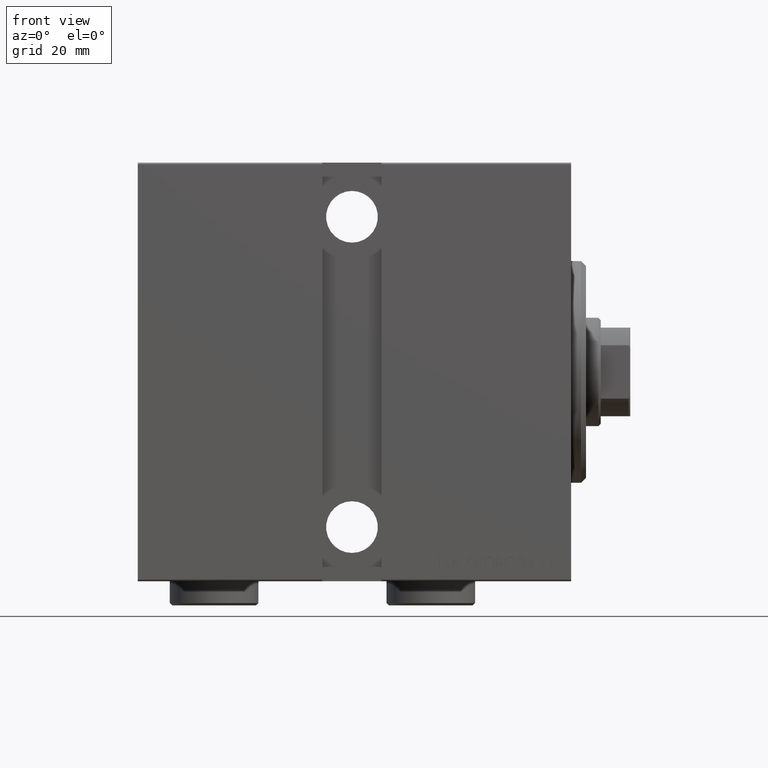
[diagram: clean part render]
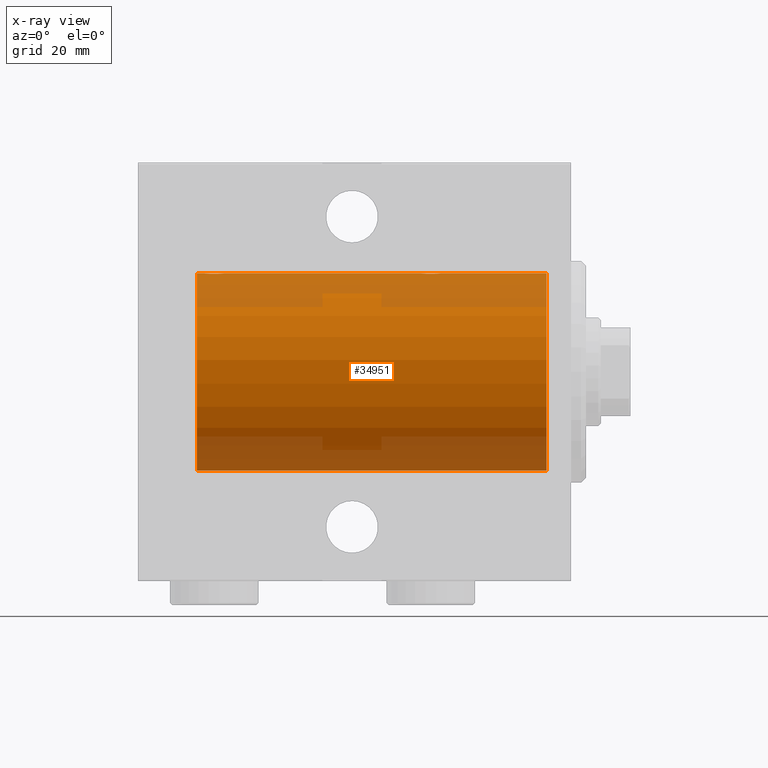
[diagram: x-ray — body ghosted, one internal face saturated and labeled with its STEP entity id]
A machine part, front view, then the same camera in x-ray: the body is ghosted and one INTERNAL B-rep face — a face not visible from any outside direction — is saturated and labeled: STEP entity #34951.
In plain terms, the highlighted cylindrical surface (partial cylindrical patch) has radius 20 mm, axis along (1, 0, -0).
Its self-contained STEP definition (entity closure, byte-faithful):
#378 = DIRECTION ( 'NONE',  ( -1.000000000000000000, -0.000000000000000000, -0.000000000000000000 ) ) ;
#546 = CARTESIAN_POINT ( 'NONE',  ( 30.00615770380712632, 1.322305185229308844, 19.95645382900617193 ) ) ;
#777 = CARTESIAN_POINT ( 'NONE',  ( 71.85628869360149906, 1.898109641280497639, 19.90978941500366872 ) ) ;
#1210 = CARTESIAN_POINT ( 'NONE',  ( 74.48701494615326624, 0.2622407139811093191, 19.99868965376115426 ) ) ;
#1415 = CARTESIAN_POINT ( 'NONE',  ( 27.61403810544162951, 1.797847595792755770, 19.91909332229799290 ) ) ;
#1422 = DIRECTION ( 'NONE',  ( -1.000000000000000000, 0.000000000000000000, 0.000000000000000000 ) ) ;
#1654 = CARTESIAN_POINT ( 'NONE',  ( 71.61403810544166504, 1.797847595792759323, 19.91909332229798935 ) ) ;
#2547 = CARTESIAN_POINT ( 'NONE',  ( 71.49702773215048524, 1.735228749583821672, 19.92471474456648650 ) ) ;
#2846 = DIRECTION ( 'NONE',  ( 0.000000000000000000, 0.000000000000000000, 1.000000000000000000 ) ) ;
#3216 = DIRECTION ( 'NONE',  ( -1.000000000000000000, 0.000000000000000000, 0.000000000000000000 ) ) ;
#3282 = EDGE_CURVE ( 'NONE', #22943, #5739, #6416, .T. ) ;
#3906 = CARTESIAN_POINT ( 'NONE',  ( 30.09059733457551289, 1.219458756546269784, 19.96308513509966431 ) ) ;
#4085 = DIRECTION ( 'NONE',  ( 0.000000000000000000, 0.000000000000000000, 1.000000000000000000 ) ) ;
#4563 = CARTESIAN_POINT ( 'NONE',  ( 76.00000000000000000, 0.000000000000000000, 0.000000000000000000 ) ) ;
#5005 = CARTESIAN_POINT ( 'NONE',  ( 73.72950112230634545, 1.598854313793176773, 19.93684595445884256 ) ) ;
#5563 = ORIENTED_EDGE ( 'NONE', *, *, #22216, .T. ) ;
#5585 = CARTESIAN_POINT ( 'NONE',  ( 76.00000000000000000, 0.000000000000000000, 20.00000000000000000 ) ) ;
#5739 = VERTEX_POINT ( 'NONE', #35422 ) ;
#6416 = LINE ( 'NONE', #36701, #40585 ) ;
#7456 = EDGE_CURVE ( 'NONE', #5739, #24642, #22100, .T. ) ;
#7478 = CARTESIAN_POINT ( 'NONE',  ( 72.76180153897439595, 1.999905101582713396, 19.89975827978156531 ) ) ;
#7578 = VERTEX_POINT ( 'NONE', #26139 ) ;
#8330 = CARTESIAN_POINT ( 'NONE',  ( 26.50000000000000000, 0.1305706983324424475, 20.00000000000000355 ) ) ;
#8365 = ORIENTED_EDGE ( 'NONE', *, *, #29020, .T. ) ;
#8560 = CARTESIAN_POINT ( 'NONE',  ( 29.02513908454998059, 1.947330458682949850, 19.90522393307484705 ) ) ;
#8791 = CARTESIAN_POINT ( 'NONE',  ( 26.90992932310325969, 1.220099331833889966, 19.96304379627741099 ) ) ;
#9239 = CARTESIAN_POINT ( 'NONE',  ( 70.51308707988555113, 0.2631998640366408626, 19.99867931558986456 ) ) ;
#10310 = CARTESIAN_POINT ( 'NONE',  ( 74.50000000000001421, 1.179655747245154047E-15, 20.00000000000000000 ) ) ;
#10397 = LINE ( 'NONE', #27544, #26405 ) ;
#10594 = CARTESIAN_POINT ( 'NONE',  ( 30.50000000000000000, -3.987914257189907626E-15, 20.00000000000000000 ) ) ;
#11223 = ORIENTED_EDGE ( 'NONE', *, *, #26367, .T. ) ;
#11486 = VERTEX_POINT ( 'NONE', #40595 ) ;
#11700 = CARTESIAN_POINT ( 'NONE',  ( 74.09059733457554842, 1.219458756546261791, 19.96308513509966787 ) ) ;
#13737 = CARTESIAN_POINT ( 'NONE',  ( 30.29721343056696270, 0.8872481584516771491, 19.98067755938510004 ) ) ;
#14730 = CARTESIAN_POINT ( 'NONE',  ( 26.50000000000000355, -1.552596590610734385E-23, 20.00000000000000000 ) ) ;
#14814 = CARTESIAN_POINT ( 'NONE',  ( 27.85628869360148840, 1.898109641280496085, 19.90978941500366872 ) ) ;
#14824 = CARTESIAN_POINT ( 'NONE',  ( 74.29721343056698402, 0.8872481584516744846, 19.98067755938509649 ) ) ;
#15487 = CARTESIAN_POINT ( 'NONE',  ( 70.50000000000004263, 0.1305706983324428083, 20.00000000000000355 ) ) ;
#16833 = B_SPLINE_CURVE_WITH_KNOTS ( 'NONE', 3,
 ( #31740, #28399, #1210, #37979, #42184, #14824, #27755, #11700, #35497, #5005, #41317, #18607, #7478, #21071, #34626, #17727, #777, #1654, #2547, #26175, #22827, #23047, #19487, #33063, #39730, #39523, #36168, #9239, #15487, #22394 ),
 .UNSPECIFIED., .F., .F.,
 ( 4, 2, 2, 2, 2, 2, 2, 2, 2, 2, 2, 2, 2, 2, 4 ),
 ( 1.146295712831832348E-18, 0.0003910512220831368810, 0.0007821024441662726779, 0.001173153666249408420, 0.001564204888332544055, 0.002346307332498786917, 0.003128409776665029562, 0.003519460998748130502, 0.003910512220831229707, 0.004301563442914330647, 0.004692614664997430719, 0.005083665887080530792, 0.005474717109163631731, 0.005865768331246731804, 0.006256819553329832743 ),
 .UNSPECIFIED. ) ;
#17009 = DIRECTION ( 'NONE',  ( -1.000000000000000000, -0.000000000000000000, -0.000000000000000000 ) ) ;
#17070 = CARTESIAN_POINT ( 'NONE',  ( 30.43615228383327320, 0.5179893069484664547, 19.99370013622814568 ) ) ;
#17155 = AXIS2_PLACEMENT_3D ( 'NONE', #17258, #3216, #4085 ) ;
#17258 = CARTESIAN_POINT ( 'NONE',  ( 5.000000000000004441, 0.000000000000000000, 0.000000000000000000 ) ) ;
#17727 = CARTESIAN_POINT ( 'NONE',  ( 71.98100525813890727, 1.935912154109689531, 19.90610216711451130 ) ) ;
#18372 = CARTESIAN_POINT ( 'NONE',  ( 27.98100525813888595, 1.935912154109690198, 19.90610216711450775 ) ) ;
#18607 = CARTESIAN_POINT ( 'NONE',  ( 73.02513908455000546, 1.947330458682945187, 19.90522393307485061 ) ) ;
#18723 = EDGE_CURVE ( 'NONE', #7578, #22943, #36564, .T. ) ;
#19042 = CARTESIAN_POINT ( 'NONE',  ( 26.99261358456011095, 1.321069663197662836, 19.95654117037011588 ) ) ;
#19136 = DIRECTION ( 'NONE',  ( -1.000000000000000000, -0.000000000000000000, -0.000000000000000000 ) ) ;
#19487 = CARTESIAN_POINT ( 'NONE',  ( 70.90992932310328456, 1.220099331833891743, 19.96304379627741454 ) ) ;
#20348 = LINE ( 'NONE', #37473, #29991 ) ;
#20844 = CARTESIAN_POINT ( 'NONE',  ( 30.49999999999997868, 0.1322335637814716913, 19.99999999999999645 ) ) ;
#21071 = CARTESIAN_POINT ( 'NONE',  ( 72.37018818709296397, 2.000047251570878259, 19.89974399317116038 ) ) ;
#21426 = DIRECTION ( 'NONE',  ( -1.000000000000000000, -0.000000000000000000, -0.000000000000000000 ) ) ;
#21928 = CARTESIAN_POINT ( 'NONE',  ( 26.76510545398016205, 1.003547732426798955, 19.97510079925437054 ) ) ;
#22100 = CIRCLE ( 'NONE', #17155, 20.00000000000000000 ) ;
#22159 = CARTESIAN_POINT ( 'NONE',  ( 26.70246098872837237, 0.8865903856744267175, 19.98070694681038972 ) ) ;
#22216 = EDGE_CURVE ( 'NONE', #33695, #23332, #16833, .T. ) ;
#22383 = CARTESIAN_POINT ( 'NONE',  ( 26.51308707988552626, 0.2631998640366420283, 19.99867931558985390 ) ) ;
#22394 = CARTESIAN_POINT ( 'NONE',  ( 70.50000000000000000, -1.553188236289650144E-23, 20.00000000000000000 ) ) ;
#22473 = CARTESIAN_POINT ( 'NONE',  ( 70.50000000000000000, -1.553188236289650144E-23, 20.00000000000000000 ) ) ;
#22623 = ORIENTED_EDGE ( 'NONE', *, *, #3282, .T. ) ;
#22827 = CARTESIAN_POINT ( 'NONE',  ( 71.17939834916164443, 1.507796451871717736, 19.94330239452387943 ) ) ;
#22943 = VERTEX_POINT ( 'NONE', #14730 ) ;
#23047 = CARTESIAN_POINT ( 'NONE',  ( 70.99261358456014648, 1.321069663197660837, 19.95654117037011943 ) ) ;
#23332 = VERTEX_POINT ( 'NONE', #22473 ) ;
#23798 = CYLINDRICAL_SURFACE ( 'NONE', #25123, 20.00000000000000000 ) ;
#23980 = DIRECTION ( 'NONE',  ( -1.000000000000000000, -0.000000000000000000, -0.000000000000000000 ) ) ;
#24184 = CARTESIAN_POINT ( 'NONE',  ( 30.39765113166073363, 0.6450624715427637490, 19.98996196681219928 ) ) ;
#24642 = VERTEX_POINT ( 'NONE', #34608 ) ;
#25123 = AXIS2_PLACEMENT_3D ( 'NONE', #30250, #378, #2846 ) ;
#26139 = CARTESIAN_POINT ( 'NONE',  ( 30.50000000000000000, -3.987914257189907626E-15, 20.00000000000000000 ) ) ;
#26175 = CARTESIAN_POINT ( 'NONE',  ( 71.28039724650254527, 1.590453176650904910, 19.93679350243183990 ) ) ;
#26367 = EDGE_CURVE ( 'NONE', #23332, #7578, #39610, .T. ) ;
#26405 = VECTOR ( 'NONE', #23980, 1000.000000000000000 ) ;
#27544 = CARTESIAN_POINT ( 'NONE',  ( 76.00000000000000000, 0.000000000000000000, 20.00000000000000000 ) ) ;
#27755 = CARTESIAN_POINT ( 'NONE',  ( 74.23576365127897247, 1.002099838626307138, 19.97517568592526516 ) ) ;
#28112 = CARTESIAN_POINT ( 'NONE',  ( 76.00000000000000000, 0.000000000000000000, 20.00000000000000000 ) ) ;
#28390 = CARTESIAN_POINT ( 'NONE',  ( 27.49702773215046392, 1.735228749583825003, 19.92471474456648650 ) ) ;
#28399 = CARTESIAN_POINT ( 'NONE',  ( 74.50000000000001421, 0.1322335637814731901, 20.00000000000000000 ) ) ;
#29020 = EDGE_CURVE ( 'NONE', #40828, #33695, #10397, .T. ) ;
#29991 = VECTOR ( 'NONE', #17009, 1000.000000000000000 ) ;
#30015 = CIRCLE ( 'NONE', #36427, 20.00000000000000000 ) ;
#30250 = CARTESIAN_POINT ( 'NONE',  ( 76.00000000000000000, 0.000000000000000000, 0.000000000000000000 ) ) ;
#30613 = VECTOR ( 'NONE', #21426, 1000.000000000000000 ) ;
#31071 = CARTESIAN_POINT ( 'NONE',  ( 30.23576365127895116, 1.002099838626316464, 19.97517568592526160 ) ) ;
#31214 = EDGE_CURVE ( 'NONE', #11486, #24642, #20348, .T. ) ;
#31509 = CARTESIAN_POINT ( 'NONE',  ( 30.48701494615325203, 0.2622407139811169796, 19.99868965376115071 ) ) ;
#31740 = CARTESIAN_POINT ( 'NONE',  ( 74.50000000000001421, 1.179655747245154047E-15, 20.00000000000000000 ) ) ;
#31794 = ORIENTED_EDGE ( 'NONE', *, *, #18723, .T. ) ;
#32169 = EDGE_CURVE ( 'NONE', #40828, #11486, #30015, .T. ) ;
#33063 = CARTESIAN_POINT ( 'NONE',  ( 70.76510545398019758, 1.003547732426800065, 19.97510079925437765 ) ) ;
#33578 = FACE_OUTER_BOUND ( 'NONE', #41330, .T. ) ;
#33695 = VERTEX_POINT ( 'NONE', #10310 ) ;
#33927 = ORIENTED_EDGE ( 'NONE', *, *, #31214, .F. ) ;
#34608 = CARTESIAN_POINT ( 'NONE',  ( 5.000000000000004441, 2.449293598294706513E-15, -20.00000000000000000 ) ) ;
#34626 = CARTESIAN_POINT ( 'NONE',  ( 72.23758582180001042, 1.987020435121064521, 19.90106552791689154 ) ) ;
#34951 = ADVANCED_FACE ( 'NONE', ( #33578 ), #23798, .F. ) ;
#35422 = CARTESIAN_POINT ( 'NONE',  ( 5.000000000000004441, 0.000000000000000000, 20.00000000000000000 ) ) ;
#35497 = CARTESIAN_POINT ( 'NONE',  ( 74.00615770380713343, 1.322305185229304181, 19.95645382900617193 ) ) ;
#35716 = CARTESIAN_POINT ( 'NONE',  ( 26.60210312641135033, 0.6443418861413082732, 19.98998539619404013 ) ) ;
#36168 = CARTESIAN_POINT ( 'NONE',  ( 70.56426851132711420, 0.5196544277756652841, 19.99365919015135873 ) ) ;
#36427 = AXIS2_PLACEMENT_3D ( 'NONE', #4563, #1422, #38404 ) ;
#36564 = B_SPLINE_CURVE_WITH_KNOTS ( 'NONE', 3,
 ( #10594, #20844, #31509, #17070, #24184, #13737, #31071, #3906, #546, #41306, #37966, #8560, #39290, #41954, #42611, #18372, #14814, #1415, #28390, #41736, #38622, #19042, #8791, #21928, #22159, #35716, #42397, #22383, #8330, #42174 ),
 .UNSPECIFIED., .F., .F.,
 ( 4, 2, 2, 2, 2, 2, 2, 2, 2, 2, 2, 2, 2, 2, 4 ),
 ( 6.737296076284884849E-18, 0.0003910512220831210517, 0.0007821024441662353813, 0.001173153666249349657, 0.001564204888332464041, 0.002346307332498693676, 0.003128409776664922877, 0.003519460998748032490, 0.003910512220831142104, 0.004301563442914251717, 0.004692614664997360463, 0.005083665887080470944, 0.005474717109163579690, 0.005865768331246689303, 0.006256819553329798916 ),
 .UNSPECIFIED. ) ;
#36701 = CARTESIAN_POINT ( 'NONE',  ( 76.00000000000000000, 0.000000000000000000, 20.00000000000000000 ) ) ;
#37473 = CARTESIAN_POINT ( 'NONE',  ( 76.00000000000000000, 2.449293598294706513E-15, -20.00000000000000000 ) ) ;
#37966 = CARTESIAN_POINT ( 'NONE',  ( 29.50645759073829311, 1.747830109444741042, 19.92373272380676852 ) ) ;
#37979 = CARTESIAN_POINT ( 'NONE',  ( 74.43615228383329452, 0.5179893069484606816, 19.99370013622814568 ) ) ;
#38404 = DIRECTION ( 'NONE',  ( 0.000000000000000000, 0.000000000000000000, 1.000000000000000000 ) ) ;
#38622 = CARTESIAN_POINT ( 'NONE',  ( 27.17939834916165509, 1.507796451871719734, 19.94330239452387588 ) ) ;
#39290 = CARTESIAN_POINT ( 'NONE',  ( 28.76180153897437819, 1.999905101582717171, 19.89975827978156531 ) ) ;
#39523 = CARTESIAN_POINT ( 'NONE',  ( 70.60210312641140717, 0.6443418861413057197, 19.98998539619404369 ) ) ;
#39610 = LINE ( 'NONE', #28112, #30613 ) ;
#39730 = CARTESIAN_POINT ( 'NONE',  ( 70.70246098872841856, 0.8865903856744251632, 19.98070694681040038 ) ) ;
#40585 = VECTOR ( 'NONE', #19136, 1000.000000000000000 ) ;
#40595 = CARTESIAN_POINT ( 'NONE',  ( 76.00000000000000000, 2.449293598294706513E-15, -20.00000000000000000 ) ) ;
#40828 = VERTEX_POINT ( 'NONE', #5585 ) ;
#41306 = CARTESIAN_POINT ( 'NONE',  ( 29.72950112230633835, 1.598854313793181658, 19.93684595445884966 ) ) ;
#41317 = CARTESIAN_POINT ( 'NONE',  ( 73.50645759073830732, 1.747830109444736602, 19.92373272380677207 ) ) ;
#41330 = EDGE_LOOP ( 'NONE', ( #33927, #43131, #8365, #5563, #11223, #31794, #22623, #43429 ) ) ;
#41736 = CARTESIAN_POINT ( 'NONE',  ( 27.28039724650255948, 1.590453176650909350, 19.93679350243183634 ) ) ;
#41954 = CARTESIAN_POINT ( 'NONE',  ( 28.37018818709292844, 2.000047251570879148, 19.89974399317114617 ) ) ;
#42174 = CARTESIAN_POINT ( 'NONE',  ( 26.50000000000000355, -1.552596590610734385E-23, 20.00000000000000000 ) ) ;
#42184 = CARTESIAN_POINT ( 'NONE',  ( 74.39765113166075139, 0.6450624715427611955, 19.98996196681220638 ) ) ;
#42397 = CARTESIAN_POINT ( 'NONE',  ( 26.56426851132707867, 0.5196544277756658392, 19.99365919015135873 ) ) ;
#42611 = CARTESIAN_POINT ( 'NONE',  ( 28.23758582179997845, 1.987020435121066742, 19.90106552791688799 ) ) ;
#43131 = ORIENTED_EDGE ( 'NONE', *, *, #32169, .F. ) ;
#43429 = ORIENTED_EDGE ( 'NONE', *, *, #7456, .T. ) ;